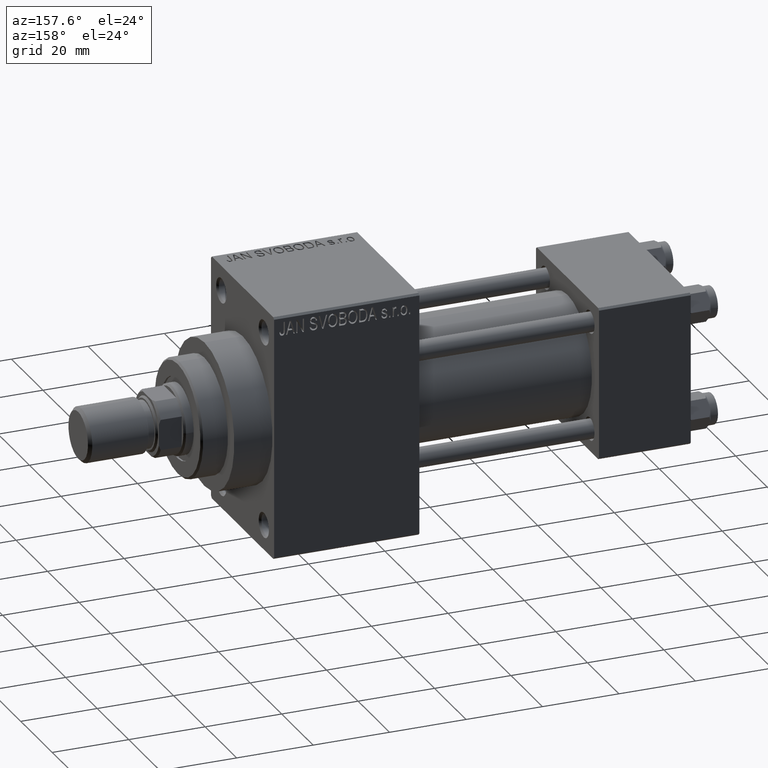
[diagram: clean part render]
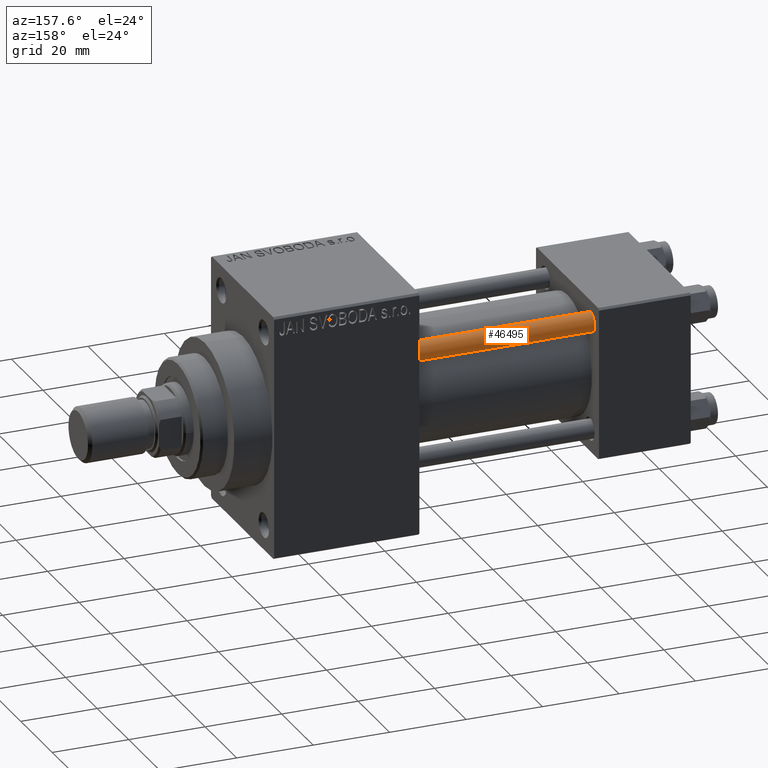
[diagram: same view with one face highlighted and labeled with its STEP entity id]
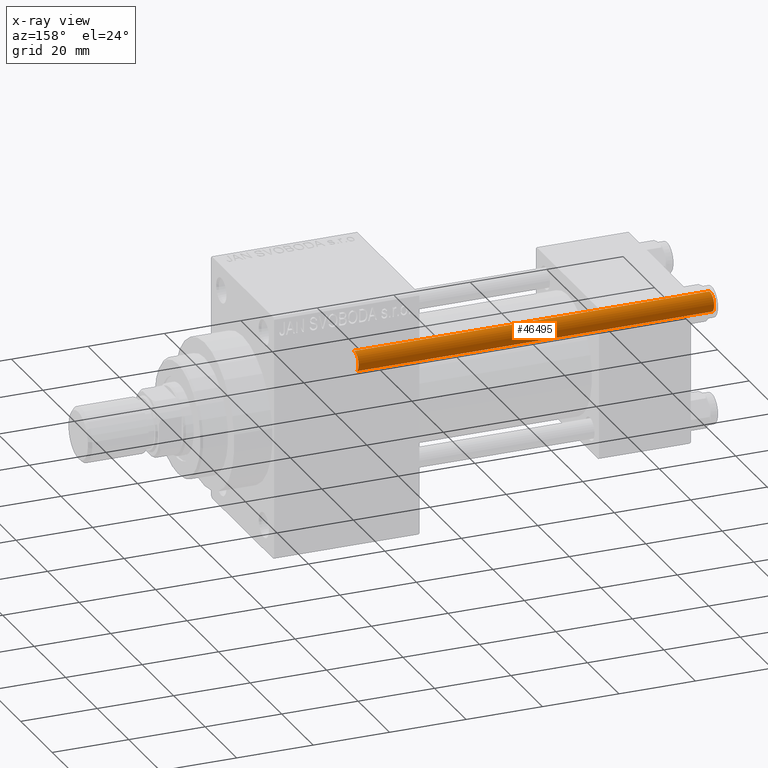
[diagram: x-ray of the same camera — body ghosted, the highlighted face saturated]
A machine part, auxiliary view. The second image highlights one B-rep face of the part: STEP entity #46495.
The next image is the same camera in x-ray: the body ghosted, the highlighted face saturated — about 0% of this face is hidden behind the body in this view.
In plain terms, the highlighted cylindrical surface (edge-blend (fillet) strip) has radius 2.5 mm, axis along (-1, -0, 0).
Its self-contained STEP definition (entity closure, byte-faithful):
#208 = EDGE_CURVE ( 'NONE', #45043, #40505, #11259, .T. ) ;
#620 = AXIS2_PLACEMENT_3D ( 'NONE', #18391, #43827, #3009 ) ;
#3009 = DIRECTION ( 'NONE',  ( -1.000000000000000000, 0.000000000000000000, 0.000000000000000000 ) ) ;
#4136 = CARTESIAN_POINT ( 'NONE',  ( 0.000000000000000000, 0.000000000000000000, 0.5000000000000004441 ) ) ;
#6706 = CARTESIAN_POINT ( 'NONE',  ( -2.500000000000000000, 0.000000000000000000, 93.50000000000001421 ) ) ;
#8377 = EDGE_CURVE ( 'NONE', #40505, #12735, #34914, .T. ) ;
#8688 = VERTEX_POINT ( 'NONE', #36923 ) ;
#9071 = EDGE_CURVE ( 'NONE', #45043, #8688, #38037, .T. ) ;
#9966 = CARTESIAN_POINT ( 'NONE',  ( 2.500000000000000000, 3.061616997868383141E-16, 0.5000000000000004441 ) ) ;
#10339 = DIRECTION ( 'NONE',  ( -0.000000000000000000, -0.000000000000000000, -1.000000000000000000 ) ) ;
#11259 = CIRCLE ( 'NONE', #18161, 2.500000000000000000 ) ;
#11825 = CARTESIAN_POINT ( 'NONE',  ( 0.000000000000000000, 0.000000000000000000, 93.50000000000001421 ) ) ;
#12735 = VERTEX_POINT ( 'NONE', #9966 ) ;
#13967 = ORIENTED_EDGE ( 'NONE', *, *, #14068, .T. ) ;
#14068 = EDGE_CURVE ( 'NONE', #12735, #8688, #18748, .T. ) ;
#14815 = VECTOR ( 'NONE', #10339, 1000.000000000000000 ) ;
#15979 = DIRECTION ( 'NONE',  ( -0.000000000000000000, -0.000000000000000000, -1.000000000000000000 ) ) ;
#16384 = VECTOR ( 'NONE', #15979, 1000.000000000000000 ) ;
#18161 = AXIS2_PLACEMENT_3D ( 'NONE', #11825, #18345, #44512 ) ;
#18345 = DIRECTION ( 'NONE',  ( 0.000000000000000000, 0.000000000000000000, -1.000000000000000000 ) ) ;
#18391 = CARTESIAN_POINT ( 'NONE',  ( 0.000000000000000000, 0.000000000000000000, 94.00000000000000000 ) ) ;
#18748 = CIRCLE ( 'NONE', #19478, 2.500000000000000000 ) ;
#19030 = DIRECTION ( 'NONE',  ( 1.000000000000000000, 0.000000000000000000, 0.000000000000000000 ) ) ;
#19478 = AXIS2_PLACEMENT_3D ( 'NONE', #4136, #29601, #19030 ) ;
#21974 = CYLINDRICAL_SURFACE ( 'NONE', #620, 2.500000000000000000 ) ;
#27088 = EDGE_LOOP ( 'NONE', ( #39656, #28626, #13967, #44027 ) ) ;
#28626 = ORIENTED_EDGE ( 'NONE', *, *, #8377, .T. ) ;
#28835 = CARTESIAN_POINT ( 'NONE',  ( 2.500000000000000000, 3.061616997868383141E-16, 94.00000000000000000 ) ) ;
#29601 = DIRECTION ( 'NONE',  ( -0.000000000000000000, -0.000000000000000000, 1.000000000000000000 ) ) ;
#34914 = LINE ( 'NONE', #28835, #14815 ) ;
#36923 = CARTESIAN_POINT ( 'NONE',  ( -2.500000000000000000, 0.000000000000000000, 0.5000000000000004441 ) ) ;
#38037 = LINE ( 'NONE', #41881, #16384 ) ;
#38456 = CARTESIAN_POINT ( 'NONE',  ( 2.500000000000000000, 3.061616997868383141E-16, 93.50000000000001421 ) ) ;
#39656 = ORIENTED_EDGE ( 'NONE', *, *, #208, .T. ) ;
#39960 = FACE_OUTER_BOUND ( 'NONE', #27088, .T. ) ;
#40505 = VERTEX_POINT ( 'NONE', #38456 ) ;
#41881 = CARTESIAN_POINT ( 'NONE',  ( -2.500000000000000000, 0.000000000000000000, 94.00000000000000000 ) ) ;
#43827 = DIRECTION ( 'NONE',  ( -0.000000000000000000, -0.000000000000000000, -1.000000000000000000 ) ) ;
#44027 = ORIENTED_EDGE ( 'NONE', *, *, #9071, .F. ) ;
#44512 = DIRECTION ( 'NONE',  ( 1.000000000000000000, 0.000000000000000000, 0.000000000000000000 ) ) ;
#45043 = VERTEX_POINT ( 'NONE', #6706 ) ;
#46495 = ADVANCED_FACE ( 'NONE', ( #39960 ), #21974, .T. ) ;